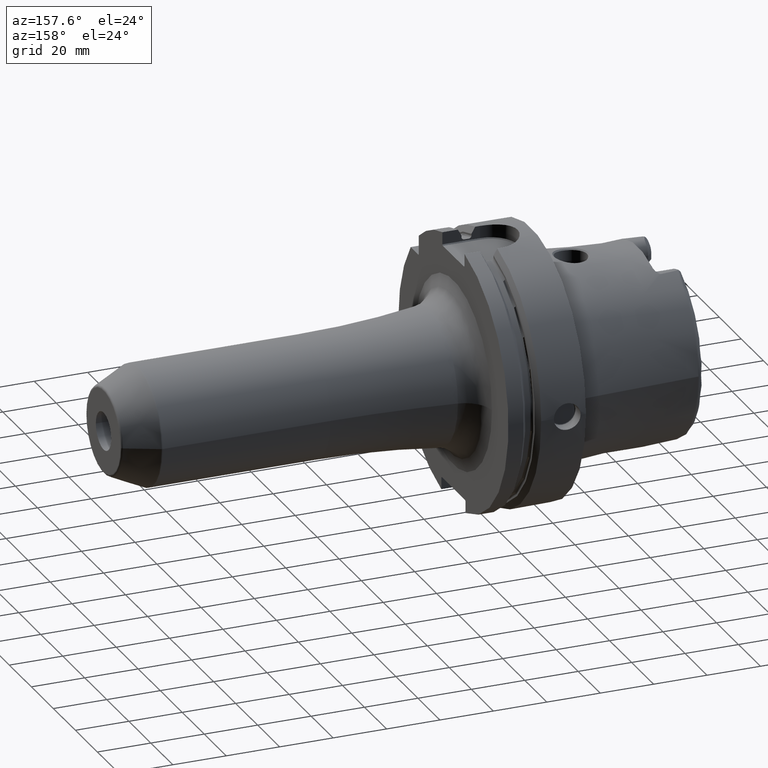
[diagram: clean part render]
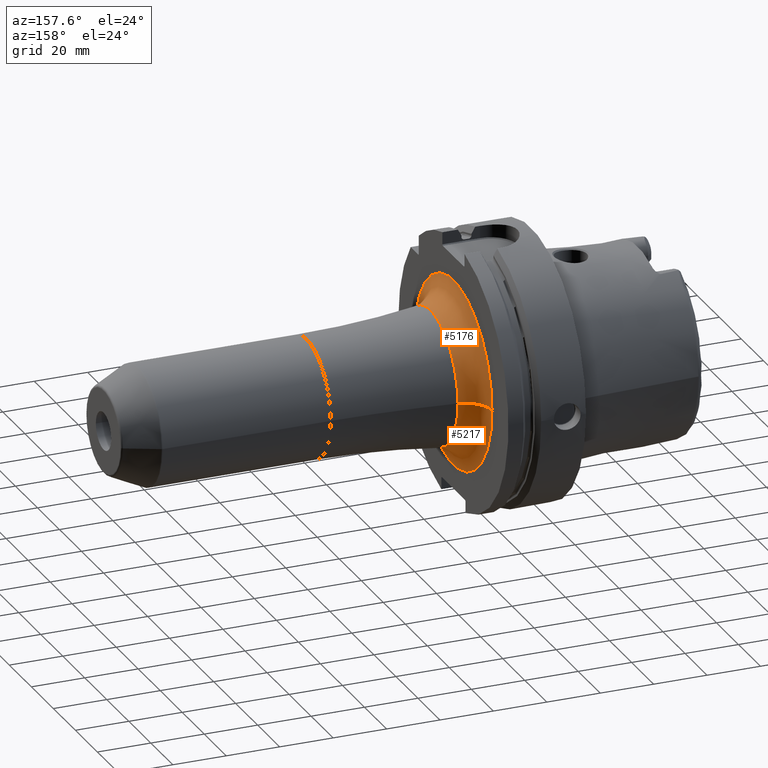
[diagram: same view with one multi-face feature highlighted, each face labeled with its STEP entity id]
A machine part, auxiliary view. The highlighted faces form ONE feature: a constant-radius fillet chain: 2 tangent blend faces with common blend radius 10 mm. The faces share edges in the B-rep.
Their STEP definitions:
[1] entity #5217 (Torus):
#1096=CARTESIAN_POINT('',(2.9E1,0.E0,0.E0));
#1097=DIRECTION('',(1.E0,0.E0,0.E0));
#1098=DIRECTION('',(0.E0,-1.E0,0.E0));
#1099=AXIS2_PLACEMENT_3D('',#1096,#1097,#1098);
#1810=CARTESIAN_POINT('',(3.9E1,3.499109804042E1,-2.479544347622E-13));
#1811=DIRECTION('',(0.E0,0.E0,1.E0));
#1812=DIRECTION('',(-1.E0,0.E0,0.E0));
#1813=AXIS2_PLACEMENT_3D('',#1810,#1811,#1812);
#1830=CARTESIAN_POINT('',(3.767647058823E1,0.E0,0.E0));
#1831=DIRECTION('',(1.E0,0.E0,0.E0));
#1832=DIRECTION('',(0.E0,-1.E0,0.E0));
#1833=AXIS2_PLACEMENT_3D('',#1830,#1831,#1832);
#1835=CARTESIAN_POINT('',(3.9E1,-3.499109804042E1,2.519928710143E-13));
#1836=DIRECTION('',(0.E0,0.E0,-1.E0));
#1837=DIRECTION('',(-1.E0,0.E0,0.E0));
#1838=AXIS2_PLACEMENT_3D('',#1835,#1836,#1837);
#3333=CARTESIAN_POINT('',(3.767647058823E1,2.507907151220E1,0.E0));
#3334=CARTESIAN_POINT('',(3.767647058823E1,-2.507907151220E1,0.E0));
#3335=VERTEX_POINT('',#3333);
#3336=VERTEX_POINT('',#3334);
#3337=CARTESIAN_POINT('',(2.9E1,3.499109804042E1,-2.818502575901E-13));
#3338=CARTESIAN_POINT('',(2.9E1,-3.499109804042E1,2.861354312115E-13));
#3339=VERTEX_POINT('',#3337);
#3340=VERTEX_POINT('',#3338);
#5206=CARTESIAN_POINT('',(3.9E1,0.E0,0.E0));
#5207=DIRECTION('',(1.E0,0.E0,0.E0));
#5208=DIRECTION('',(0.E0,-9.999944558028E-1,3.329919481702E-3));
#5209=AXIS2_PLACEMENT_3D('',#5206,#5207,#5208);
#5210=TOROIDAL_SURFACE('',#5209,3.499109804042E1,1.E1);
#5211=ORIENTED_EDGE('',*,*,#4444,.F.);
#5212=ORIENTED_EDGE('',*,*,#5169,.T.);
#5213=ORIENTED_EDGE('',*,*,#5197,.T.);
#5214=ORIENTED_EDGE('',*,*,#5172,.F.);
#5215=EDGE_LOOP('',(#5211,#5212,#5213,#5214));
#5216=FACE_OUTER_BOUND('',#5215,.F.);
#5217=ADVANCED_FACE('',(#5216),#5210,.F.);
#1100=CIRCLE('',#1099,3.499109804042E1);
#1814=CIRCLE('',#1813,1.E1);
#1834=CIRCLE('',#1833,2.507907151220E1);
#1839=CIRCLE('',#1838,1.E1);
#4444=EDGE_CURVE('',#3340,#3339,#1100,.T.);
#5169=EDGE_CURVE('',#3340,#3336,#1839,.T.);
#5172=EDGE_CURVE('',#3339,#3335,#1814,.T.);
#5197=EDGE_CURVE('',#3336,#3335,#1834,.T.);
[2] entity #5176 (Torus):
#1091=CARTESIAN_POINT('',(2.9E1,0.E0,0.E0));
#1092=DIRECTION('',(1.E0,0.E0,0.E0));
#1093=DIRECTION('',(0.E0,1.E0,0.E0));
#1094=AXIS2_PLACEMENT_3D('',#1091,#1092,#1093);
#1810=CARTESIAN_POINT('',(3.9E1,3.499109804042E1,-2.479544347622E-13));
#1811=DIRECTION('',(0.E0,0.E0,1.E0));
#1812=DIRECTION('',(-1.E0,0.E0,0.E0));
#1813=AXIS2_PLACEMENT_3D('',#1810,#1811,#1812);
#1815=CARTESIAN_POINT('',(3.767647058823E1,0.E0,0.E0));
#1816=DIRECTION('',(1.E0,0.E0,0.E0));
#1817=DIRECTION('',(0.E0,1.E0,0.E0));
#1818=AXIS2_PLACEMENT_3D('',#1815,#1816,#1817);
#1835=CARTESIAN_POINT('',(3.9E1,-3.499109804042E1,2.519928710143E-13));
#1836=DIRECTION('',(0.E0,0.E0,-1.E0));
#1837=DIRECTION('',(-1.E0,0.E0,0.E0));
#1838=AXIS2_PLACEMENT_3D('',#1835,#1836,#1837);
#3333=CARTESIAN_POINT('',(3.767647058823E1,2.507907151220E1,0.E0));
#3334=CARTESIAN_POINT('',(3.767647058823E1,-2.507907151220E1,0.E0));
#3335=VERTEX_POINT('',#3333);
#3336=VERTEX_POINT('',#3334);
#3337=CARTESIAN_POINT('',(2.9E1,3.499109804042E1,-2.818502575901E-13));
#3338=CARTESIAN_POINT('',(2.9E1,-3.499109804042E1,2.861354312115E-13));
#3339=VERTEX_POINT('',#3337);
#3340=VERTEX_POINT('',#3338);
#5162=CARTESIAN_POINT('',(3.9E1,0.E0,0.E0));
#5163=DIRECTION('',(1.E0,0.E0,0.E0));
#5164=DIRECTION('',(0.E0,9.999944558028E-1,-3.329919481702E-3));
#5165=AXIS2_PLACEMENT_3D('',#5162,#5163,#5164);
#5166=TOROIDAL_SURFACE('',#5165,3.499109804042E1,1.E1);
#5168=ORIENTED_EDGE('',*,*,#5167,.T.);
#5170=ORIENTED_EDGE('',*,*,#5169,.F.);
#5171=ORIENTED_EDGE('',*,*,#4442,.F.);
#5173=ORIENTED_EDGE('',*,*,#5172,.T.);
#5174=EDGE_LOOP('',(#5168,#5170,#5171,#5173));
#5175=FACE_OUTER_BOUND('',#5174,.F.);
#5176=ADVANCED_FACE('',(#5175),#5166,.F.);
#1095=CIRCLE('',#1094,3.499109804042E1);
#1814=CIRCLE('',#1813,1.E1);
#1819=CIRCLE('',#1818,2.507907151220E1);
#1839=CIRCLE('',#1838,1.E1);
#4442=EDGE_CURVE('',#3339,#3340,#1095,.T.);
#5167=EDGE_CURVE('',#3335,#3336,#1819,.T.);
#5169=EDGE_CURVE('',#3340,#3336,#1839,.T.);
#5172=EDGE_CURVE('',#3339,#3335,#1814,.T.);